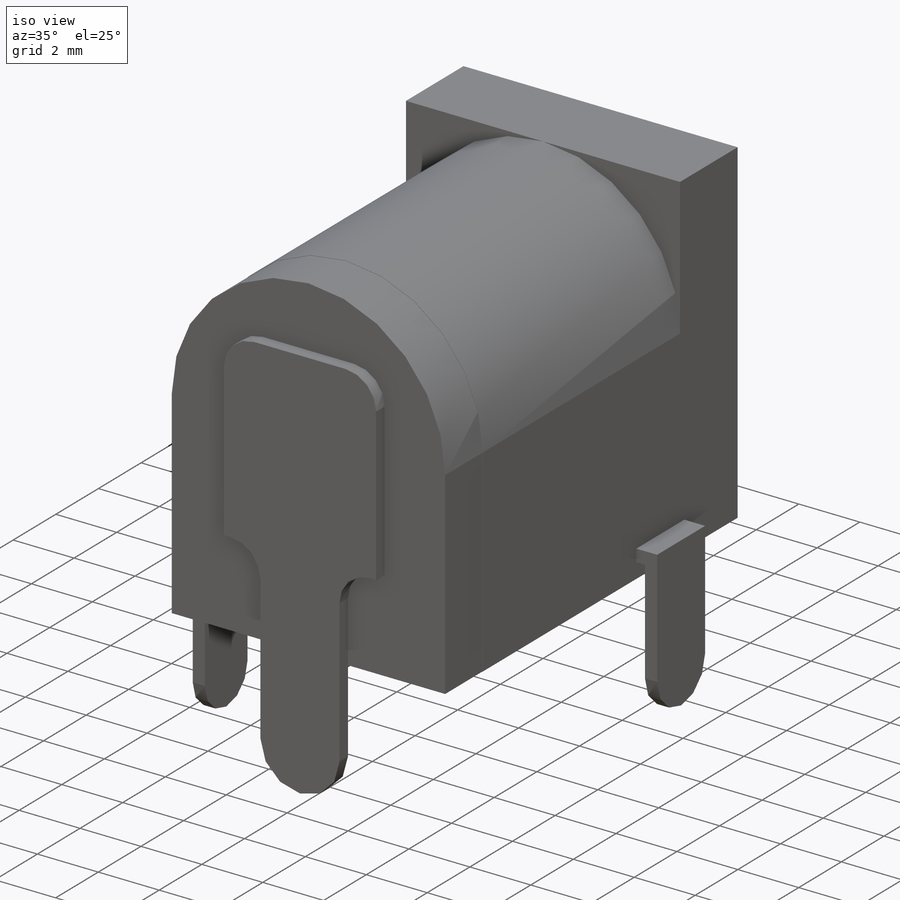
[diagram: iso view]
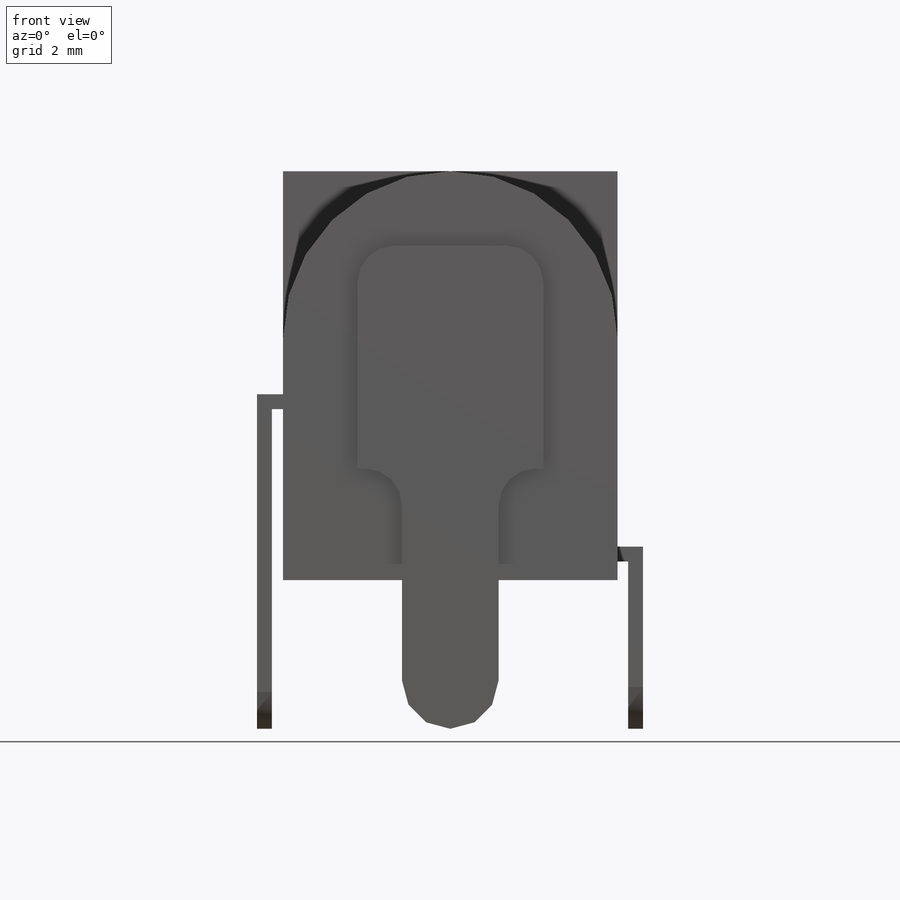
[diagram: front view]
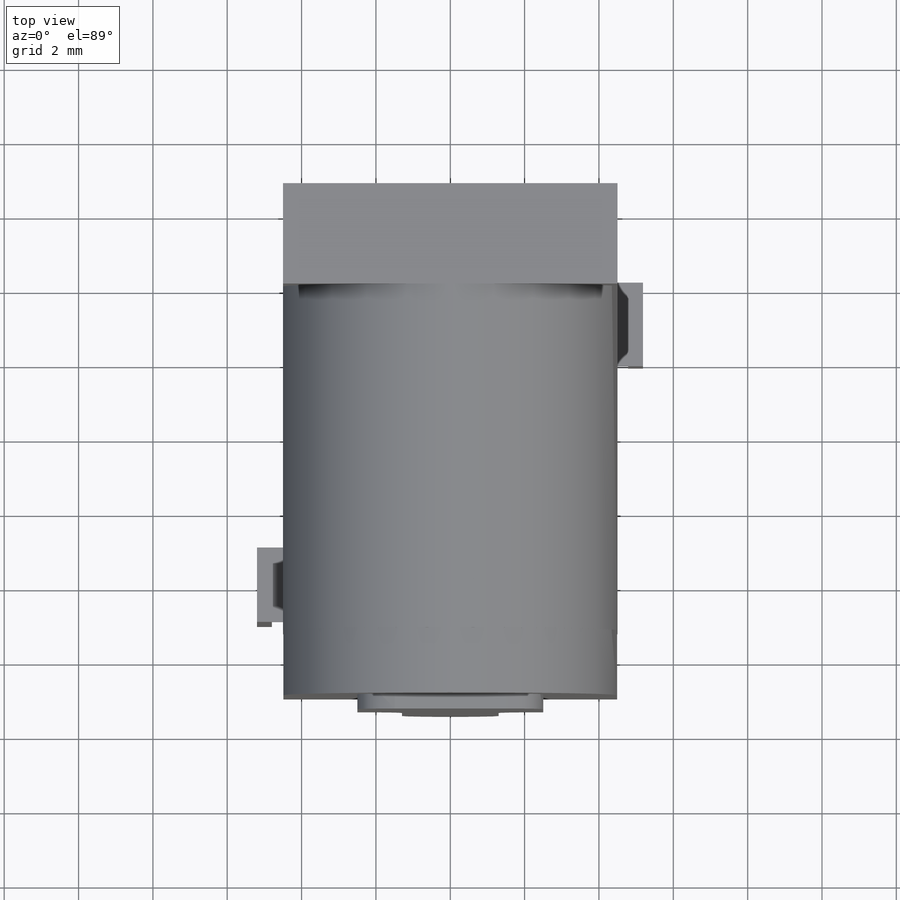
[diagram: top view]
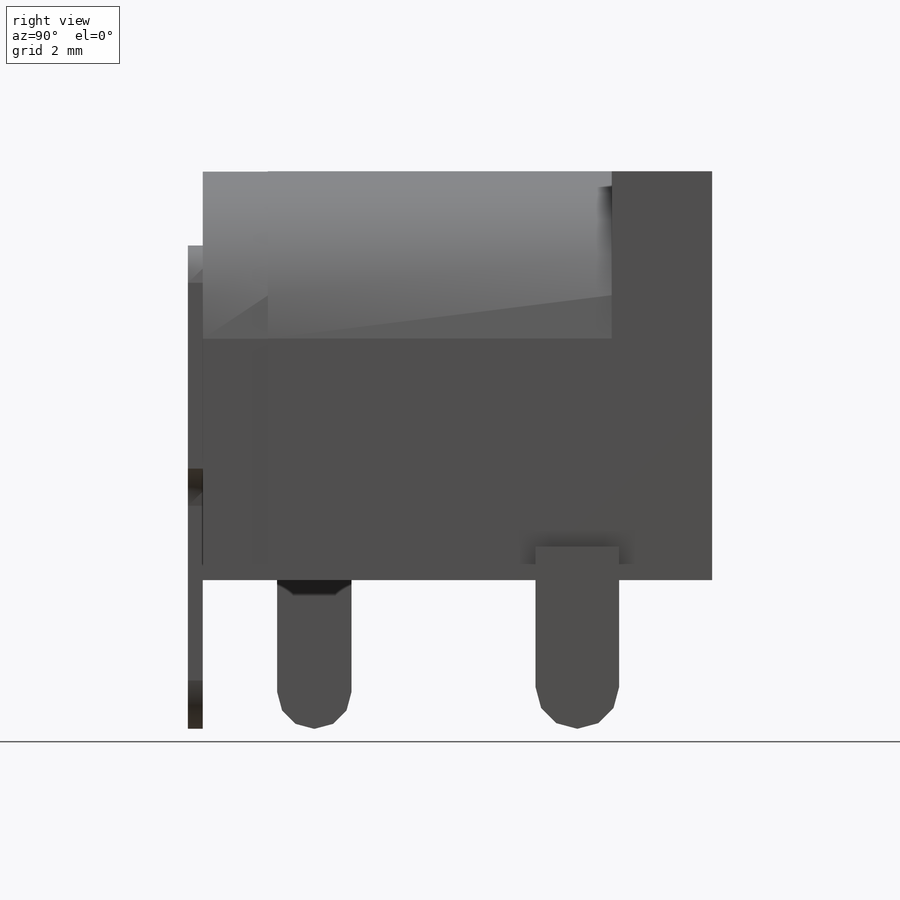
[diagram: right view]
SOLIDWORKS PART (.sldprt)
format: sldprt  version: not decoded by parser v0  size: 316,928 bytes
history: native  units: mm
features: sketch x10, plane x5, extrude x5, fillet x3, sweep x2, material x1, cut_extrude x1 (+8 scaffold rows collapsed)
feature tree (35):
  scaffold x8  (default folders/planes/origin — collapsed)
  material  "Matériau <non spécifié>"
  plane  "Plan de face"
  plane  "Plan de dessus"
  plane  "Plan de droite"
  sketch  "Esquisse1"  dims[D1=11.0mm D2=4.5mm D3=4.5mm D4=4.5mm]
  extrude  "Extrusion1"  Depth=9.25mm
  sketch  "Esquisse2"  dims[D1=4.5mm]
  extrude  "Extrusion2"  Depth=1.75mm
  sketch  "Esquisse3"
  extrude  "Extrusion3"  Depth=2.7mm
  sketch  "Esquisse5"  dims[D1=~1.150705mm]
  cut_extrude  "Enlèv. mat.-Extru.1"  Depth=10mm
  sketch  "Esquisse6"  dims[D1=~0.516073mm]
  extrude  "Extrusion4"  Depth=8mm
  fillet  "Congé1"  Radius=0.99mm
  sketch  "Esquisse7"  dims[c1.D7=1.0mm c1.D8=1.299mm c1.D1=2.5mm c1.D2=2.5mm c1.D3=4.0mm c1.D4=9.0mm c1.D5=6.0mm c1.D6=1.3mm c2.D8=1.3mm]
  extrude  "Extrusion5"  Depth=0.4mm
  sketch  "Esquisse8"  dims[D1=9.7mm D2=1.25mm D3=2.25mm D4=0.5mm D5=0.4mm D6=0.2mm]
  plane  "Plan1"  Offset=0.8mm
  sketch  "Esquisse9"  dims[D1=0.5mm]
  sweep  "Balayage1"
  fillet  "Congé2"  Radius=1.124mm
  sketch  "Esquisse10"  dims[D1=2.5mm D2=5.0mm D3=0.2mm D4=0.2mm D5=1.0mm D6=1.0mm]
  plane  "Plan2"  Offset=8mm
  sketch  "Esquisse11"  dims[D1=0.5mm]
  sweep  "Balayage2"
  fillet  "Congé3"  Radius=0.99mm
decode coverage: 18 of 21 modeling features carry decoded parameters
note: ~ marks probable driven/reference dimensions
note: suppression state not decoded; provenance and decode notes live in map.json
